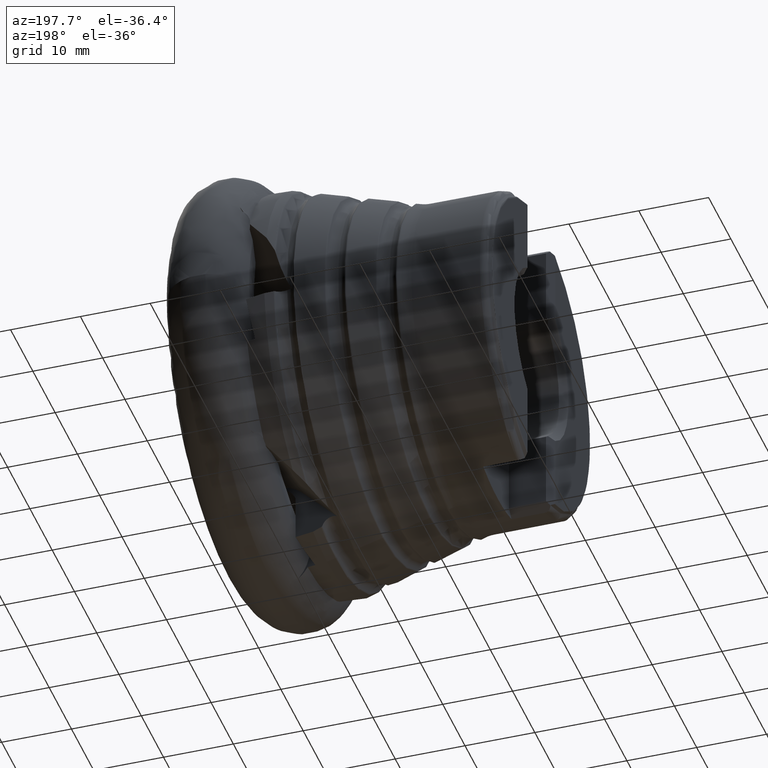
[diagram: clean part render]
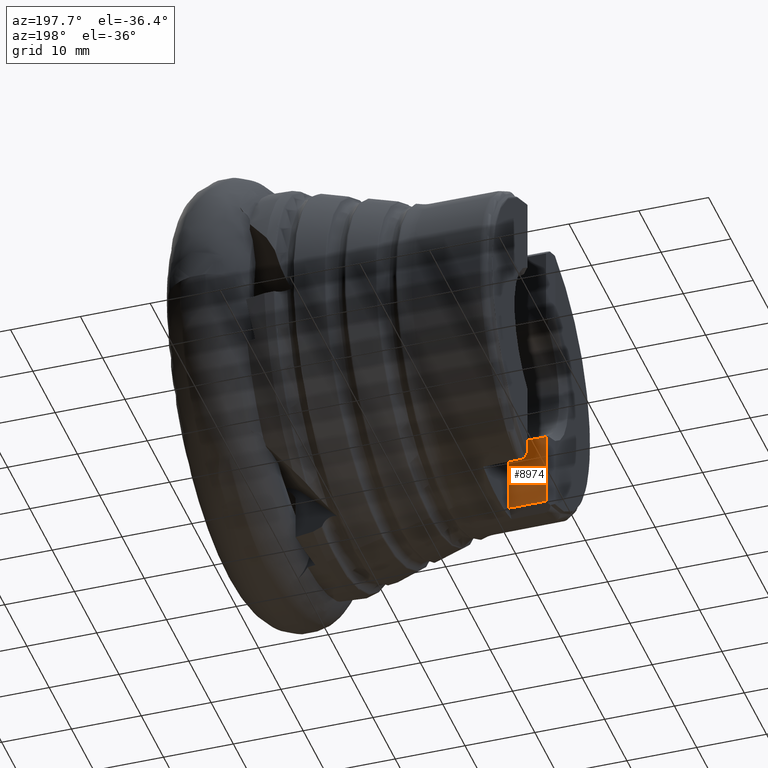
[diagram: same view with one face highlighted and labeled with its STEP entity id]
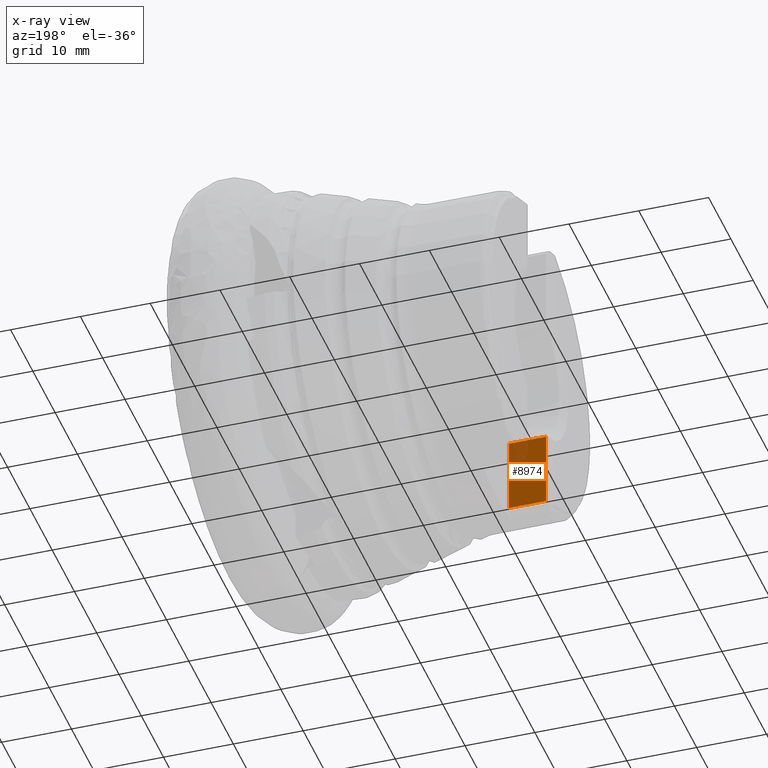
[diagram: x-ray of the same camera — body ghosted, the highlighted face saturated]
A machine part, auxiliary view. The second image highlights one B-rep face of the part: STEP entity #8974.
The next image is the same camera in x-ray: the body ghosted, the highlighted face saturated — about 14% of this face is hidden behind the body in this view.
In plain terms, the highlighted planar face has unit normal (0, -1, 0).
Its self-contained STEP definition (entity closure, byte-faithful):
#223 = CARTESIAN_POINT ( 'NONE',  ( -37.40000000000000600, -5.230000000000070600, -10.10264068711921900 ) ) ;
#416 = FACE_OUTER_BOUND ( 'NONE', #5298, .T. ) ;
#441 = LINE ( 'NONE', #3068, #7467 ) ;
#927 = AXIS2_PLACEMENT_3D ( 'NONE', #1273, #6136, #3423 ) ;
#1065 = VECTOR ( 'NONE', #1587, 1000.000000000000000 ) ;
#1273 = CARTESIAN_POINT ( 'NONE',  ( -37.40000000000000600, -5.230000000000147000, -21.00735931288067300 ) ) ;
#1383 = EDGE_CURVE ( 'NONE', #6062, #1667, #3042, .T. ) ;
#1465 = ORIENTED_EDGE ( 'NONE', *, *, #1383, .F. ) ;
#1474 = LINE ( 'NONE', #4365, #1065 ) ;
#1513 = DIRECTION ( 'NONE',  ( 0.0000000000000000000, 6.982962677686266700E-015, 1.000000000000000000 ) ) ;
#1549 = VERTEX_POINT ( 'NONE', #3383 ) ;
#1587 = DIRECTION ( 'NONE',  ( -1.000000000000000000, -0.0000000000000000000, -0.0000000000000000000 ) ) ;
#1667 = VERTEX_POINT ( 'NONE', #6114 ) ;
#1694 = DIRECTION ( 'NONE',  ( 0.0000000000000000000, 6.982962677686266700E-015, 1.000000000000000000 ) ) ;
#1831 = ORIENTED_EDGE ( 'NONE', *, *, #8158, .T. ) ;
#1996 = PLANE ( 'NONE',  #927 ) ;
#2832 = ORIENTED_EDGE ( 'NONE', *, *, #6071, .F. ) ;
#3042 = LINE ( 'NONE', #5688, #4233 ) ;
#3068 = CARTESIAN_POINT ( 'NONE',  ( -42.70000000000001000, -5.230000000000075900, -10.88359889926118400 ) ) ;
#3383 = CARTESIAN_POINT ( 'NONE',  ( -42.70000000000001000, -5.230000000000146100, -21.00735931288067300 ) ) ;
#3423 = DIRECTION ( 'NONE',  ( 0.0000000000000000000, -6.982962677686266700E-015, -1.000000000000000000 ) ) ;
#4059 = VERTEX_POINT ( 'NONE', #4242 ) ;
#4233 = VECTOR ( 'NONE', #1513, 1000.000000000000000 ) ;
#4242 = CARTESIAN_POINT ( 'NONE',  ( -42.70000000000001000, -5.230000000000069700, -10.10264068711921900 ) ) ;
#4249 = CARTESIAN_POINT ( 'NONE',  ( -37.40000000000000600, -5.230000000000147000, -21.00735931288067300 ) ) ;
#4365 = CARTESIAN_POINT ( 'NONE',  ( -37.40000000000000600, -5.230000000000147000, -21.00735931288067300 ) ) ;
#5298 = EDGE_LOOP ( 'NONE', ( #1831, #7448, #2832, #1465 ) ) ;
#5415 = LINE ( 'NONE', #223, #8677 ) ;
#5688 = CARTESIAN_POINT ( 'NONE',  ( -37.40000000000000600, -5.230000000000147000, -21.00735931288067300 ) ) ;
#6062 = VERTEX_POINT ( 'NONE', #4249 ) ;
#6071 = EDGE_CURVE ( 'NONE', #1667, #4059, #5415, .T. ) ;
#6114 = CARTESIAN_POINT ( 'NONE',  ( -37.40000000000000600, -5.230000000000070600, -10.10264068711921900 ) ) ;
#6136 = DIRECTION ( 'NONE',  ( 0.0000000000000000000, -1.000000000000000000, 6.982962677686266700E-015 ) ) ;
#6412 = DIRECTION ( 'NONE',  ( -1.000000000000000000, -0.0000000000000000000, -0.0000000000000000000 ) ) ;
#6583 = EDGE_CURVE ( 'NONE', #1549, #4059, #441, .T. ) ;
#7448 = ORIENTED_EDGE ( 'NONE', *, *, #6583, .T. ) ;
#7467 = VECTOR ( 'NONE', #1694, 1000.000000000000000 ) ;
#8158 = EDGE_CURVE ( 'NONE', #6062, #1549, #1474, .T. ) ;
#8677 = VECTOR ( 'NONE', #6412, 1000.000000000000000 ) ;
#8974 = ADVANCED_FACE ( 'NONE', ( #416 ), #1996, .F. ) ;